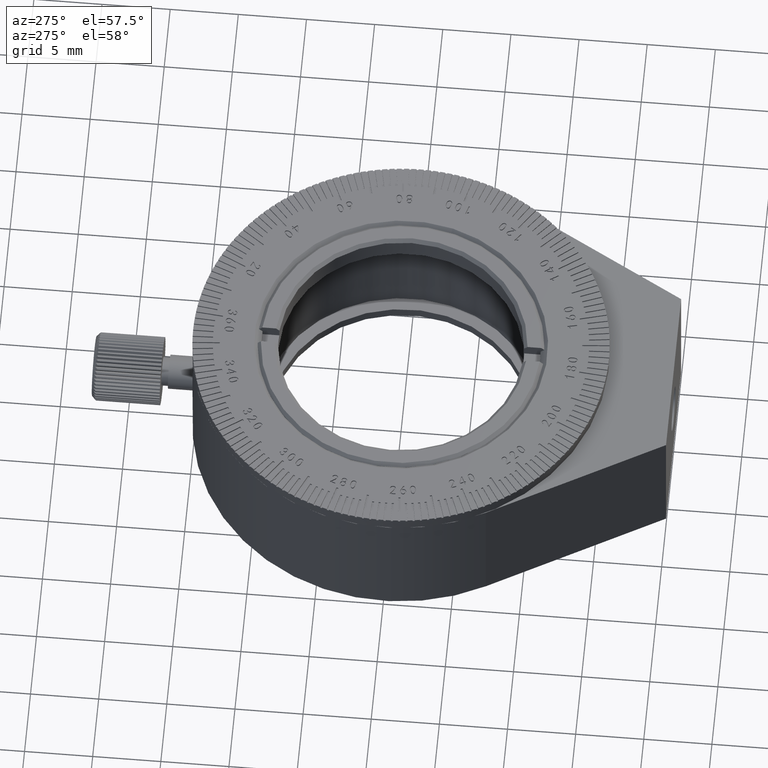
[diagram: clean part render]
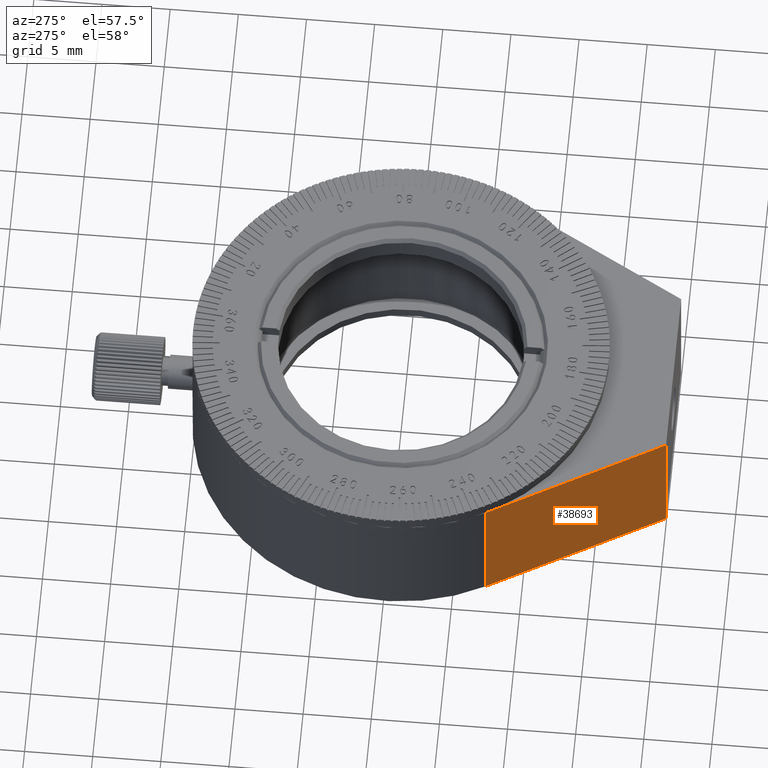
[diagram: same view with one face highlighted and labeled with its STEP entity id]
A machine part, auxiliary view. The second image highlights one B-rep face of the part: STEP entity #38693.
In plain terms, the highlighted planar face has unit normal (0.8746, 0.4848, -0).
Its self-contained STEP definition (entity closure, byte-faithful):
#672 = PLANE ( 'NONE',  #24352 ) ;
#905 = CARTESIAN_POINT ( 'NONE',  ( -13.33796466272209358, 10.00000000000000000, 7.393321219585737403 ) ) ;
#1685 = FACE_OUTER_BOUND ( 'NONE', #64809, .T. ) ;
#3487 = DIRECTION ( 'NONE',  ( 0.4848079488252942659, 0.000000000000000000, 0.8746206336211207466 ) ) ;
#3825 = ORIENTED_EDGE ( 'NONE', *, *, #49950, .F. ) ;
#4984 = VECTOR ( 'NONE', #16809, 1000.000000000000000 ) ;
#5818 = CARTESIAN_POINT ( 'NONE',  ( -13.33796466272209358, 10.00000000000000000, 7.393321219585737403 ) ) ;
#6496 = CARTESIAN_POINT ( 'NONE',  ( -13.33796466272209358, 10.00000000000000000, 7.393321219585737403 ) ) ;
#6906 = LINE ( 'NONE', #64978, #57528 ) ;
#11934 = EDGE_CURVE ( 'NONE', #46695, #25491, #37444, .T. ) ;
#12041 = VERTEX_POINT ( 'NONE', #40482 ) ;
#16809 = DIRECTION ( 'NONE',  ( -0.000000000000000000, -1.000000000000000000, -0.000000000000000000 ) ) ;
#21550 = LINE ( 'NONE', #32201, #31089 ) ;
#23937 = EDGE_CURVE ( 'NONE', #25491, #12041, #34427, .T. ) ;
#24352 = AXIS2_PLACEMENT_3D ( 'NONE', #5818, #53896, #58718 ) ;
#25491 = VERTEX_POINT ( 'NONE', #56334 ) ;
#27873 = DIRECTION ( 'NONE',  ( -0.000000000000000000, -1.000000000000000000, -0.000000000000000000 ) ) ;
#28571 = VECTOR ( 'NONE', #3487, 1000.000000000000114 ) ;
#31089 = VECTOR ( 'NONE', #62118, 1000.000000000000114 ) ;
#32201 = CARTESIAN_POINT ( 'NONE',  ( -13.33796466272209358, 10.00000000000000000, 7.393321219585737403 ) ) ;
#34427 = LINE ( 'NONE', #45742, #28571 ) ;
#37444 = LINE ( 'NONE', #6496, #4984 ) ;
#38693 = ADVANCED_FACE ( 'NONE', ( #1685 ), #672, .F. ) ;
#40482 = CARTESIAN_POINT ( 'NONE',  ( -6.349999999999996980, 0.000000000000000000, 20.00000000000000000 ) ) ;
#45742 = CARTESIAN_POINT ( 'NONE',  ( -13.33796466272209358, 0.000000000000000000, 7.393321219585737403 ) ) ;
#46695 = VERTEX_POINT ( 'NONE', #905 ) ;
#46936 = VERTEX_POINT ( 'NONE', #53375 ) ;
#49801 = ORIENTED_EDGE ( 'NONE', *, *, #23937, .T. ) ;
#49950 = EDGE_CURVE ( 'NONE', #46695, #46936, #21550, .T. ) ;
#51859 = EDGE_CURVE ( 'NONE', #46936, #12041, #6906, .T. ) ;
#53375 = CARTESIAN_POINT ( 'NONE',  ( -6.349999999999996980, 10.00000000000000000, 20.00000000000000000 ) ) ;
#53896 = DIRECTION ( 'NONE',  ( 0.8746206336211208576, 0.000000000000000000, -0.4848079488252942659 ) ) ;
#54904 = ORIENTED_EDGE ( 'NONE', *, *, #11934, .T. ) ;
#56334 = CARTESIAN_POINT ( 'NONE',  ( -13.33796466272209358, 0.000000000000000000, 7.393321219585737403 ) ) ;
#57528 = VECTOR ( 'NONE', #27873, 1000.000000000000000 ) ;
#58718 = DIRECTION ( 'NONE',  ( -0.4848079488252942104, 0.000000000000000000, -0.8746206336211207466 ) ) ;
#62118 = DIRECTION ( 'NONE',  ( 0.4848079488252942659, 0.000000000000000000, 0.8746206336211207466 ) ) ;
#64809 = EDGE_LOOP ( 'NONE', ( #49801, #66305, #3825, #54904 ) ) ;
#64978 = CARTESIAN_POINT ( 'NONE',  ( -6.349999999999996980, 10.00000000000000000, 20.00000000000000000 ) ) ;
#66305 = ORIENTED_EDGE ( 'NONE', *, *, #51859, .F. ) ;